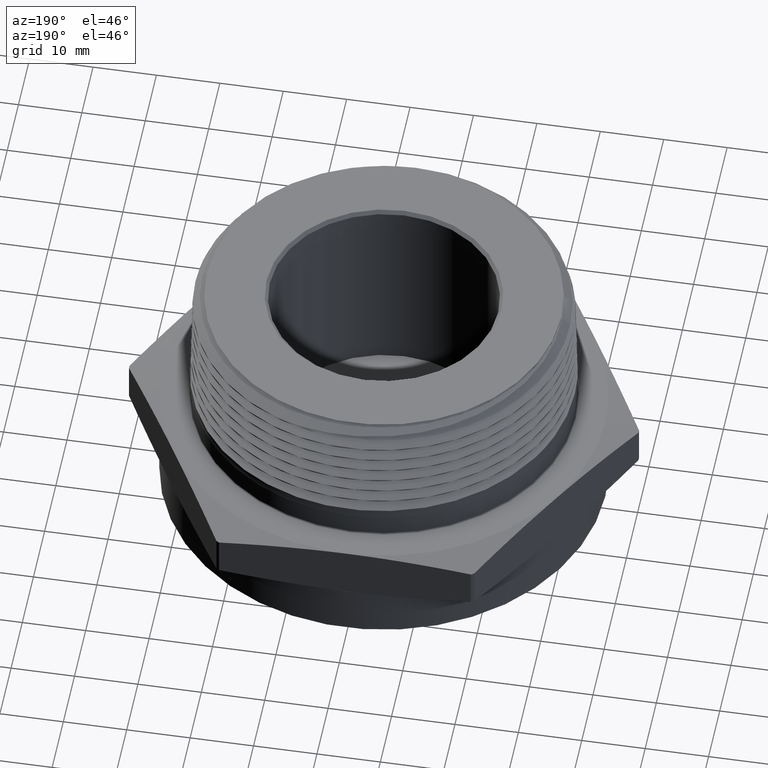
[diagram: clean part render]
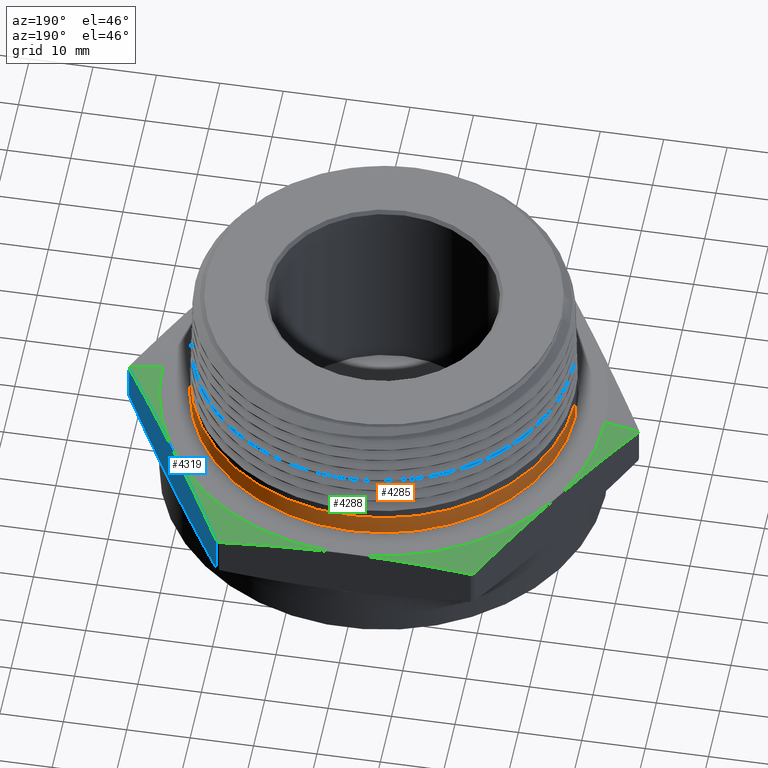
[diagram: same view with three faces highlighted in distinct colors, each labeled with its STEP entity id]
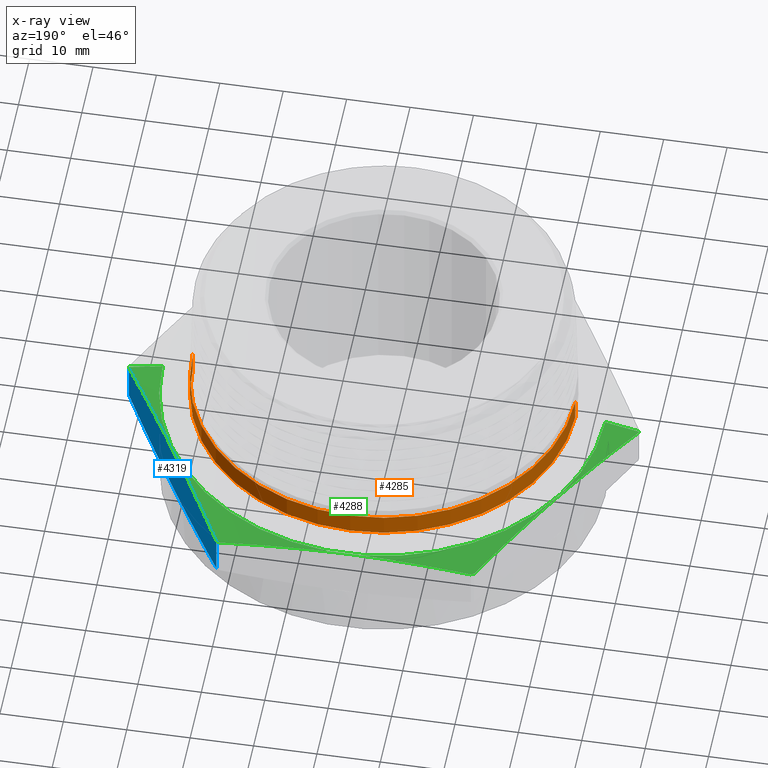
[diagram: x-ray of the same camera — body ghosted, the three highlighted faces saturated]
A machine part, auxiliary view with three faces highlighted in distinct colors.
The next image is the same camera in x-ray (body ghosted, the three faces saturated) — at least one of them is partly hidden behind the body in this view.
Their STEP definitions:

[orange] entity #4285 — the highlighted cylindrical surface (partial cylindrical patch) has radius 30.1625 mm, axis along (-0, -0, -1).
#592 = CARTESIAN_POINT ( 'NONE',  ( 1.187500000000000000, 1.454268073987482100E-016, 0.4712952533779566900 ) ) ;
#593 = CARTESIAN_POINT ( 'NONE',  ( -1.187500000000000000, 0.0000000000000000000, 0.4712952533779566900 ) ) ;
#655 = CARTESIAN_POINT ( 'NONE',  ( -1.187500000000000000, 0.0000000000000000000, 0.3400000000000000800 ) ) ;
#658 = CARTESIAN_POINT ( 'NONE',  ( 1.187500000000000000, 1.454268073987482100E-016, 0.3400000000000000800 ) ) ;
#1606 = AXIS2_PLACEMENT_3D ( 'NONE', #4873, #4874, #4875 ) ;
#1608 = AXIS2_PLACEMENT_3D ( 'NONE', #4886, #4887, #4888 ) ;
#1616 = AXIS2_PLACEMENT_3D ( 'NONE', #4907, #4908, #4906 ) ;
#1939 = EDGE_LOOP ( 'NONE', ( #2112, #2113, #2114, #2115 ) ) ;
#1979 = VERTEX_POINT ( 'NONE', #592 ) ;
#1980 = VERTEX_POINT ( 'NONE', #593 ) ;
#2092 = VERTEX_POINT ( 'NONE', #655 ) ;
#2095 = VERTEX_POINT ( 'NONE', #658 ) ;
#2112 = ORIENTED_EDGE ( 'NONE', *, *, #4224, .F. ) ;
#2113 = ORIENTED_EDGE ( 'NONE', *, *, #4230, .T. ) ;
#2114 = ORIENTED_EDGE ( 'NONE', *, *, #4228, .T. ) ;
#2115 = ORIENTED_EDGE ( 'NONE', *, *, #4231, .F. ) ;
#3012 = CIRCLE ( 'NONE', #1606, 1.187500000000000000 ) ;
#3016 = CIRCLE ( 'NONE', #1608, 1.187500000000000000 ) ;
#3019 = LINE ( 'NONE', #4885, #3021 ) ;
#3020 = LINE ( 'NONE', #4892, #3023 ) ;
#3021 = VECTOR ( 'NONE', #4884, 39.37007874015748100 ) ;
#3023 = VECTOR ( 'NONE', #4894, 39.37007874015748100 ) ;
#3032 = FACE_OUTER_BOUND ( 'NONE', #1939, .T. ) ;
#3035 = CYLINDRICAL_SURFACE ( 'NONE', #1616, 1.187500000000000000 ) ;
#4224 = EDGE_CURVE ( 'NONE', #1979, #1980, #3012, .T. ) ;
#4228 = EDGE_CURVE ( 'NONE', #2095, #2092, #3016, .T. ) ;
#4230 = EDGE_CURVE ( 'NONE', #1979, #2095, #3019, .T. ) ;
#4231 = EDGE_CURVE ( 'NONE', #1980, #2092, #3020, .T. ) ;
#4285 = ADVANCED_FACE ( 'NONE', ( #3032 ), #3035, .T. ) ;
#4873 = CARTESIAN_POINT ( 'NONE',  ( 0.0000000000000000000, 0.0000000000000000000, 0.4712952533779566900 ) ) ;
#4874 = DIRECTION ( 'NONE',  ( 0.0000000000000000000, 0.0000000000000000000, 1.000000000000000000 ) ) ;
#4875 = DIRECTION ( 'NONE',  ( -1.000000000000000000, 0.0000000000000000000, 0.0000000000000000000 ) ) ;
#4884 = DIRECTION ( 'NONE',  ( -0.0000000000000000000, -0.0000000000000000000, -1.000000000000000000 ) ) ;
#4885 = CARTESIAN_POINT ( 'NONE',  ( 1.187500000000000000, 1.454268073987482100E-016, 1.200000000000000000 ) ) ;
#4886 = CARTESIAN_POINT ( 'NONE',  ( 0.0000000000000000000, 0.0000000000000000000, 0.3400000000000000800 ) ) ;
#4887 = DIRECTION ( 'NONE',  ( -0.0000000000000000000, 0.0000000000000000000, 1.000000000000000000 ) ) ;
#4888 = DIRECTION ( 'NONE',  ( 1.000000000000000000, 0.0000000000000000000, 0.0000000000000000000 ) ) ;
#4892 = CARTESIAN_POINT ( 'NONE',  ( -1.187500000000000000, 0.0000000000000000000, 1.200000000000000000 ) ) ;
#4894 = DIRECTION ( 'NONE',  ( -0.0000000000000000000, -0.0000000000000000000, -1.000000000000000000 ) ) ;
#4906 = DIRECTION ( 'NONE',  ( -1.000000000000000000, 0.0000000000000000000, 0.0000000000000000000 ) ) ;
#4907 = CARTESIAN_POINT ( 'NONE',  ( 0.0000000000000000000, 0.0000000000000000000, 1.200000000000000000 ) ) ;
#4908 = DIRECTION ( 'NONE',  ( -0.0000000000000000000, -0.0000000000000000000, -1.000000000000000000 ) ) ;

[blue] entity #4319 — the highlighted planar face has unit normal (-0.866, -0.5, 0).
#13 = FACE_OUTER_BOUND ( 'NONE', #4256, .T. ) ;
#27 = B_SPLINE_CURVE_WITH_KNOTS ( 'NONE', 3,
 ( #458, #453, #454, #459, #460, #461, #462, #463, #464 ),
 .UNSPECIFIED., .F., .F.,
 ( 4, 2, 1, 2, 4 ),
 ( 1.903613379328393000E-006, 0.009930605507436409200, 0.01985930740149348700, 0.02978800929555056700, 0.03971671118960765100 ),
 .UNSPECIFIED. ) ;
#48 = B_SPLINE_CURVE_WITH_KNOTS ( 'NONE', 3,
 ( #1748, #1743, #1745, #1750 ),
 .UNSPECIFIED., .F., .F.,
 ( 4, 4 ),
 ( 0.01619990781229774600, 0.02351870699068968700 ),
 .UNSPECIFIED. ) ;
#453 = CARTESIAN_POINT ( 'NONE',  ( 0.8650401174064541500, 1.251706566066673500, 0.2996671014703055600 ) ) ;
#454 = CARTESIAN_POINT ( 'NONE',  ( 0.9301890799658837400, 1.138865252853339200, 0.3107620878294867800 ) ) ;
#458 = CARTESIAN_POINT ( 'NONE',  ( 0.7998911548470242200, 1.364547879280008300, 0.2859780607105314500 ) ) ;
#459 = CARTESIAN_POINT ( 'NONE',  ( 1.060487005084743000, 0.9131826264266694700, 0.3259089137437639100 ) ) ;
#460 = CARTESIAN_POINT ( 'NONE',  ( 1.190784930203602200, 0.6875000000000005600, 0.3339237188848420100 ) ) ;
#461 = CARTESIAN_POINT ( 'NONE',  ( 1.321082855322462100, 0.4618173735733309100, 0.3259089137437639100 ) ) ;
#462 = CARTESIAN_POINT ( 'NONE',  ( 1.451380780441321500, 0.2361347471466614900, 0.3107620878294867200 ) ) ;
#463 = CARTESIAN_POINT ( 'NONE',  ( 1.516529743000751600, 0.1232934339333269000, 0.2996671014703055100 ) ) ;
#464 = CARTESIAN_POINT ( 'NONE',  ( 1.581678705560180900, 0.01045212071999235600, 0.2859780607105313300 ) ) ;
#529 = CARTESIAN_POINT ( 'NONE',  ( 1.581678705560180600, 0.01045212071999235300, 0.04402193928946827200 ) ) ;
#530 = CARTESIAN_POINT ( 'NONE',  ( 0.7998911548470242200, 1.364547879280008300, 0.04402193928946797300 ) ) ;
#536 = CARTESIAN_POINT ( 'NONE',  ( 1.262820355187775200, 0.5627309839825966900, 0.001683635675387478700 ) ) ;
#574 = CARTESIAN_POINT ( 'NONE',  ( 0.7998911548470242200, 1.364547879280008300, 0.2859780607105314500 ) ) ;
#580 = CARTESIAN_POINT ( 'NONE',  ( 1.581678705560180900, 0.01045212071999235600, 0.2859780607105313300 ) ) ;
#632 = CARTESIAN_POINT ( 'NONE',  ( 1.118749505219429800, 0.8122690160174037600, 0.001683635675387478500 ) ) ;
#1142 = EDGE_CURVE ( 'NONE', #1967, #1887, #3338, .T. ) ;
#1146 = EDGE_CURVE ( 'NONE', #1898, #1960, #3342, .T. ) ;
#1157 = EDGE_CURVE ( 'NONE', #1886, #2019, #48, .T. ) ;
#1196 = EDGE_CURVE ( 'NONE', #1960, #1967, #27, .T. ) ;
#1648 = AXIS2_PLACEMENT_3D ( 'NONE', #3523, #3528, #3529 ) ;
#1679 = CARTESIAN_POINT ( 'NONE',  ( 1.581678705560180600, 0.01045212071999235300, -4.905664297508268900E-017 ) ) ;
#1681 = DIRECTION ( 'NONE',  ( -1.254986547952384500E-016, -0.0000000000000000000, -1.000000000000000000 ) ) ;
#1683 = CARTESIAN_POINT ( 'NONE',  ( 0.7998911548470242200, 1.364547879280008300, 4.905664297508268900E-017 ) ) ;
#1691 = DIRECTION ( 'NONE',  ( 1.254986547952384500E-016, 0.0000000000000000000, 1.000000000000000000 ) ) ;
#1743 = CARTESIAN_POINT ( 'NONE',  ( 1.214796738531660300, 0.6459103279941989000, -0.0004438263417191749000 ) ) ;
#1745 = CARTESIAN_POINT ( 'NONE',  ( 1.166773121875545000, 0.7290896720058014400, -0.0004438263417191634700 ) ) ;
#1748 = CARTESIAN_POINT ( 'NONE',  ( 1.262820355187775200, 0.5627309839825966900, 0.001683635675387478700 ) ) ;
#1750 = CARTESIAN_POINT ( 'NONE',  ( 1.118749505219429800, 0.8122690160174037600, 0.001683635675387478500 ) ) ;
#1852 = ORIENTED_EDGE ( 'NONE', *, *, #4213, .T. ) ;
#1865 = B_SPLINE_CURVE_WITH_KNOTS ( 'NONE', 3,
 ( #4655, #4656, #4660, #4661, #4662, #4663 ),
 .UNSPECIFIED., .F., .F.,
 ( 4, 2, 4 ),
 ( 0.02351870699068968700, 0.03161770909014878500, 0.03971671118960788000 ),
 .UNSPECIFIED. ) ;
#1866 = B_SPLINE_CURVE_WITH_KNOTS ( 'NONE', 3,
 ( #4639, #4647, #4651, #4652, #4653, #4654 ),
 .UNSPECIFIED., .F., .F.,
 ( 4, 2, 4 ),
 ( 1.903613379562672400E-006, 0.008100905712838654700, 0.01619990781229774600 ),
 .UNSPECIFIED. ) ;
#1886 = VERTEX_POINT ( 'NONE', #536 ) ;
#1887 = VERTEX_POINT ( 'NONE', #529 ) ;
#1898 = VERTEX_POINT ( 'NONE', #530 ) ;
#1960 = VERTEX_POINT ( 'NONE', #574 ) ;
#1967 = VERTEX_POINT ( 'NONE', #580 ) ;
#2019 = VERTEX_POINT ( 'NONE', #632 ) ;
#3338 = LINE ( 'NONE', #1679, #3341 ) ;
#3341 = VECTOR ( 'NONE', #1681, 39.37007874015748100 ) ;
#3342 = LINE ( 'NONE', #1683, #3348 ) ;
#3348 = VECTOR ( 'NONE', #1691, 39.37007874015748100 ) ;
#3522 = PLANE ( 'NONE',  #1648 ) ;
#3523 = CARTESIAN_POINT ( 'NONE',  ( 1.587713240271470600, 4.414597284588198800E-016, 0.3300000000000000200 ) ) ;
#3528 = DIRECTION ( 'NONE',  ( -0.8660254037844384900, -0.5000000000000003300, 0.0000000000000000000 ) ) ;
#3529 = DIRECTION ( 'NONE',  ( 0.5000000000000003300, -0.8660254037844384900, 0.0000000000000000000 ) ) ;
#4213 = EDGE_CURVE ( 'NONE', #1887, #1886, #1866, .T. ) ;
#4215 = EDGE_CURVE ( 'NONE', #2019, #1898, #1865, .T. ) ;
#4256 = EDGE_LOOP ( 'NONE', ( #1852, #8913, #8915, #8922, #8918, #8923 ) ) ;
#4319 = ADVANCED_FACE ( 'NONE', ( #13 ), #3522, .F. ) ;
#4639 = CARTESIAN_POINT ( 'NONE',  ( 1.581678705560180600, 0.01045212071999235300, 0.04402193928946827200 ) ) ;
#4647 = CARTESIAN_POINT ( 'NONE',  ( 1.528535647164779700, 0.1024985979304266200, 0.03285556819322690800 ) ) ;
#4651 = CARTESIAN_POINT ( 'NONE',  ( 1.475392588769379100, 0.1945450751408605300, 0.02341190238383943400 ) ) ;
#4652 = CARTESIAN_POINT ( 'NONE',  ( 1.369106471978577000, 0.3786380295617286000, 0.008994833965035854000 ) ) ;
#4653 = CARTESIAN_POINT ( 'NONE',  ( 1.315963413583176100, 0.4706845067721627300, 0.004037890645784417800 ) ) ;
#4654 = CARTESIAN_POINT ( 'NONE',  ( 1.262820355187775200, 0.5627309839825966900, 0.001683635675387478700 ) ) ;
#4655 = CARTESIAN_POINT ( 'NONE',  ( 1.118749505219429800, 0.8122690160174037600, 0.001683635675387478500 ) ) ;
#4656 = CARTESIAN_POINT ( 'NONE',  ( 1.065606446824028700, 0.9043154932278377700, 0.004037890645784441300 ) ) ;
#4660 = CARTESIAN_POINT ( 'NONE',  ( 1.012463388428628000, 0.9963619704382721300, 0.008994833965035921700 ) ) ;
#4661 = CARTESIAN_POINT ( 'NONE',  ( 0.9061772716378263500, 1.180454924859140300, 0.02341190238383951800 ) ) ;
#4662 = CARTESIAN_POINT ( 'NONE',  ( 0.8530342132424252300, 1.272501402069574400, 0.03285556819322707500 ) ) ;
#4663 = CARTESIAN_POINT ( 'NONE',  ( 0.7998911548470242200, 1.364547879280008300, 0.04402193928946797300 ) ) ;
#8913 = ORIENTED_EDGE ( 'NONE', *, *, #1157, .T. ) ;
#8915 = ORIENTED_EDGE ( 'NONE', *, *, #4215, .T. ) ;
#8918 = ORIENTED_EDGE ( 'NONE', *, *, #1196, .T. ) ;
#8922 = ORIENTED_EDGE ( 'NONE', *, *, #1146, .T. ) ;
#8923 = ORIENTED_EDGE ( 'NONE', *, *, #1142, .T. ) ;

[green] entity #4288 — the highlighted conical surface has half-angle 78 deg.
#27 = B_SPLINE_CURVE_WITH_KNOTS ( 'NONE', 3,
 ( #458, #453, #454, #459, #460, #461, #462, #463, #464 ),
 .UNSPECIFIED., .F., .F.,
 ( 4, 2, 1, 2, 4 ),
 ( 1.903613379328393000E-006, 0.009930605507436409200, 0.01985930740149348700, 0.02978800929555056700, 0.03971671118960765100 ),
 .UNSPECIFIED. ) ;
#29 = B_SPLINE_CURVE_WITH_KNOTS ( 'NONE', 3,
 ( #446, #441, #440, #447, #448, #449, #450, #451, #452 ),
 .UNSPECIFIED., .F., .F.,
 ( 4, 2, 1, 2, 4 ),
 ( 1.903613379444172700E-006, 0.009930605507436525400, 0.01985930740149360900, 0.02978800929555068500, 0.03971671118960776200 ),
 .UNSPECIFIED. ) ;
#113 = B_SPLINE_CURVE_WITH_KNOTS ( 'NONE', 3,
 ( #477, #465, #472, #478, #479, #480, #481, #482, #483, #484 ),
 .UNSPECIFIED., .F., .F.,
 ( 4, 2, 2, 2, 4 ),
 ( 0.03377979962099605900, 0.04374817589289529300, 0.05371655216479452600, 0.06368492843669376600, 0.07365330470859299300 ),
 .UNSPECIFIED. ) ;
#439 = DIRECTION ( 'NONE',  ( -0.9781476007338071300, 0.0000000000000000000, -0.2079116908177526300 ) ) ;
#440 = CARTESIAN_POINT ( 'NONE',  ( -1.451380780441321500, 0.2361347471466611100, 0.3107620878294870000 ) ) ;
#441 = CARTESIAN_POINT ( 'NONE',  ( -1.516529743000751400, 0.1232934339333262600, 0.2996671014703060600 ) ) ;
#442 = CARTESIAN_POINT ( 'NONE',  ( -1.374606299212598500, 0.0000000000000000000, 0.3300000000000000200 ) ) ;
#446 = CARTESIAN_POINT ( 'NONE',  ( -1.581678705560180900, 0.01045212071999167100, 0.2859780607105317800 ) ) ;
#447 = CARTESIAN_POINT ( 'NONE',  ( -1.321082855322461600, 0.4618173735733303600, 0.3259089137437640700 ) ) ;
#448 = CARTESIAN_POINT ( 'NONE',  ( -1.190784930203602900, 0.6874999999999996700, 0.3339237188848421800 ) ) ;
#449 = CARTESIAN_POINT ( 'NONE',  ( -1.060487005084743500, 0.9131826264266689200, 0.3259089137437640700 ) ) ;
#450 = CARTESIAN_POINT ( 'NONE',  ( -0.9301890799658844000, 1.138865252853338700, 0.3107620878294868900 ) ) ;
#451 = CARTESIAN_POINT ( 'NONE',  ( -0.8650401174064547000, 1.251706566066673300, 0.2996671014703057900 ) ) ;
#452 = CARTESIAN_POINT ( 'NONE',  ( -0.7998911548470250000, 1.364547879280008100, 0.2859780607105316700 ) ) ;
#453 = CARTESIAN_POINT ( 'NONE',  ( 0.8650401174064541500, 1.251706566066673500, 0.2996671014703055600 ) ) ;
#454 = CARTESIAN_POINT ( 'NONE',  ( 0.9301890799658837400, 1.138865252853339200, 0.3107620878294867800 ) ) ;
#458 = CARTESIAN_POINT ( 'NONE',  ( 0.7998911548470242200, 1.364547879280008300, 0.2859780607105314500 ) ) ;
#459 = CARTESIAN_POINT ( 'NONE',  ( 1.060487005084743000, 0.9131826264266694700, 0.3259089137437639100 ) ) ;
#460 = CARTESIAN_POINT ( 'NONE',  ( 1.190784930203602200, 0.6875000000000005600, 0.3339237188848420100 ) ) ;
#461 = CARTESIAN_POINT ( 'NONE',  ( 1.321082855322462100, 0.4618173735733309100, 0.3259089137437639100 ) ) ;
#462 = CARTESIAN_POINT ( 'NONE',  ( 1.451380780441321500, 0.2361347471466614900, 0.3107620878294867200 ) ) ;
#463 = CARTESIAN_POINT ( 'NONE',  ( 1.516529743000751600, 0.1232934339333269000, 0.2996671014703055100 ) ) ;
#464 = CARTESIAN_POINT ( 'NONE',  ( 1.581678705560180900, 0.01045212071999235600, 0.2859780607105313300 ) ) ;
#465 = CARTESIAN_POINT ( 'NONE',  ( -0.6515948728204920000, 1.375000000000000200, 0.2996560442445830300 ) ) ;
#466 = CARTESIAN_POINT ( 'NONE',  ( 3.588986192012274200E-017, 0.0000000000000000000, 0.2859780607105315600 ) ) ;
#467 = DIRECTION ( 'NONE',  ( -1.254986547952384500E-016, -0.0000000000000000000, -1.000000000000000000 ) ) ;
#468 = DIRECTION ( 'NONE',  ( -1.000000000000000000, 0.0000000000000000000, 1.295358692765665900E-016 ) ) ;
#469 = CARTESIAN_POINT ( 'NONE',  ( 3.588986192012274200E-017, 0.0000000000000000000, 0.2859780607105315600 ) ) ;
#470 = DIRECTION ( 'NONE',  ( -1.254986547952384500E-016, -0.0000000000000000000, -1.000000000000000000 ) ) ;
#471 = DIRECTION ( 'NONE',  ( -1.000000000000000000, 0.0000000000000000000, 1.295358692765665900E-016 ) ) ;
#472 = CARTESIAN_POINT ( 'NONE',  ( -0.5209048985766021600, 1.375000000000000200, 0.3107874248186294200 ) ) ;
#477 = CARTESIAN_POINT ( 'NONE',  ( -0.7817875507131555300, 1.375000000000000000, 0.2859780607105316700 ) ) ;
#478 = CARTESIAN_POINT ( 'NONE',  ( -0.2599154730155627300, 1.374999999999999800, 0.3259397607220253000 ) ) ;
#479 = CARTESIAN_POINT ( 'NONE',  ( -0.1295010883738221000, 1.375000000000000000, 0.3299328525526096200 ) ) ;
#480 = CARTESIAN_POINT ( 'NONE',  ( 0.1311478967473182500, 1.375000000000000200, 0.3298996752671549100 ) ) ;
#481 = CARTESIAN_POINT ( 'NONE',  ( 0.2613825259136066700, 1.375000000000000000, 0.3258746857438836200 ) ) ;
#482 = CARTESIAN_POINT ( 'NONE',  ( 0.5216925374187758600, 1.375000000000000000, 0.3107214236720031200 ) ) ;
#483 = CARTESIAN_POINT ( 'NONE',  ( 0.6517689198099376700, 1.375000000000000000, 0.2996377589470198800 ) ) ;
#484 = CARTESIAN_POINT ( 'NONE',  ( 0.7817875507131555300, 1.375000000000000000, 0.2859780607105314500 ) ) ;
#490 = CARTESIAN_POINT ( 'NONE',  ( 3.588986192012274200E-017, 0.0000000000000000000, 0.2859780607105315600 ) ) ;
#491 = DIRECTION ( 'NONE',  ( -1.254986547952384500E-016, -0.0000000000000000000, -1.000000000000000000 ) ) ;
#492 = DIRECTION ( 'NONE',  ( -1.000000000000000000, 0.0000000000000000000, 1.295358692765665900E-016 ) ) ;
#571 = CARTESIAN_POINT ( 'NONE',  ( -1.374606299212598700, 0.0000000000000000000, 0.3300000000000000200 ) ) ;
#573 = CARTESIAN_POINT ( 'NONE',  ( 1.374606299212598200, 1.683407204418497300E-016, 0.3299999999999996300 ) ) ;
#574 = CARTESIAN_POINT ( 'NONE',  ( 0.7998911548470242200, 1.364547879280008300, 0.2859780607105314500 ) ) ;
#579 = CARTESIAN_POINT ( 'NONE',  ( 0.7817875507131555300, 1.375000000000000000, 0.2859780607105314500 ) ) ;
#580 = CARTESIAN_POINT ( 'NONE',  ( 1.581678705560180900, 0.01045212071999235600, 0.2859780607105313300 ) ) ;
#581 = CARTESIAN_POINT ( 'NONE',  ( 1.581713240271470200, 1.937040056867444300E-016, 0.2859780607105313300 ) ) ;
#582 = CARTESIAN_POINT ( 'NONE',  ( -0.7998911548470250000, 1.364547879280008100, 0.2859780607105316700 ) ) ;
#583 = CARTESIAN_POINT ( 'NONE',  ( -1.581678705560180900, 0.01045212071999167100, 0.2859780607105317800 ) ) ;
#584 = CARTESIAN_POINT ( 'NONE',  ( -1.581713240271470400, 0.0000000000000000000, 0.2859780607105317800 ) ) ;
#649 = CARTESIAN_POINT ( 'NONE',  ( -0.7817875507131555300, 1.375000000000000000, 0.2859780607105316700 ) ) ;
#777 = DIRECTION ( 'NONE',  ( 0.9781476007338069100, 1.197885328332319900E-016, -0.2079116908177528500 ) ) ;
#783 = CARTESIAN_POINT ( 'NONE',  ( 1.374606299212598500, 1.683407204418497500E-016, 0.3299999999999996300 ) ) ;
#784 = CARTESIAN_POINT ( 'NONE',  ( 4.141455608242866600E-017, 0.0000000000000000000, 0.3299999999999998500 ) ) ;
#785 = DIRECTION ( 'NONE',  ( -1.254986547952384500E-016, -0.0000000000000000000, -1.000000000000000000 ) ) ;
#786 = DIRECTION ( 'NONE',  ( -1.000000000000000000, 0.0000000000000000000, 1.490525684642824300E-016 ) ) ;
#789 = CARTESIAN_POINT ( 'NONE',  ( 3.588986192012274200E-017, 0.0000000000000000000, 0.2859780607105315600 ) ) ;
#790 = DIRECTION ( 'NONE',  ( -1.254986547952384500E-016, -0.0000000000000000000, -1.000000000000000000 ) ) ;
#791 = DIRECTION ( 'NONE',  ( -1.000000000000000000, 0.0000000000000000000, 1.295358692765665900E-016 ) ) ;
#1193 = EDGE_CURVE ( 'NONE', #1970, #1969, #29, .T. ) ;
#1195 = EDGE_CURVE ( 'NONE', #1956, #1971, #3385, .T. ) ;
#1196 = EDGE_CURVE ( 'NONE', #1960, #1967, #27, .T. ) ;
#1197 = EDGE_CURVE ( 'NONE', #1971, #1970, #3384, .T. ) ;
#1198 = EDGE_CURVE ( 'NONE', #1966, #1960, #3387, .T. ) ;
#1200 = EDGE_CURVE ( 'NONE', #2086, #1966, #113, .T. ) ;
#1203 = EDGE_CURVE ( 'NONE', #1969, #2086, #3392, .T. ) ;
#1559 = AXIS2_PLACEMENT_3D ( 'NONE', #466, #467, #468 ) ;
#1560 = AXIS2_PLACEMENT_3D ( 'NONE', #469, #470, #471 ) ;
#1562 = AXIS2_PLACEMENT_3D ( 'NONE', #490, #491, #492 ) ;
#1594 = AXIS2_PLACEMENT_3D ( 'NONE', #784, #785, #786 ) ;
#1595 = AXIS2_PLACEMENT_3D ( 'NONE', #789, #790, #791 ) ;
#1617 = AXIS2_PLACEMENT_3D ( 'NONE', #4916, #4917, #4915 ) ;
#1920 = EDGE_LOOP ( 'NONE', ( #3479, #3480, #3481, #3482, #3483, #3484, #3485, #3486, #3487, #3488 ) ) ;
#1956 = VERTEX_POINT ( 'NONE', #571 ) ;
#1959 = VERTEX_POINT ( 'NONE', #573 ) ;
#1960 = VERTEX_POINT ( 'NONE', #574 ) ;
#1966 = VERTEX_POINT ( 'NONE', #579 ) ;
#1967 = VERTEX_POINT ( 'NONE', #580 ) ;
#1968 = VERTEX_POINT ( 'NONE', #581 ) ;
#1969 = VERTEX_POINT ( 'NONE', #582 ) ;
#1970 = VERTEX_POINT ( 'NONE', #583 ) ;
#1971 = VERTEX_POINT ( 'NONE', #584 ) ;
#2086 = VERTEX_POINT ( 'NONE', #649 ) ;
#2960 = LINE ( 'NONE', #783, #2972 ) ;
#2968 = CIRCLE ( 'NONE', #1594, 1.374606299212598500 ) ;
#2971 = CIRCLE ( 'NONE', #1595, 1.581713240271470400 ) ;
#2972 = VECTOR ( 'NONE', #777, 39.37007874015748100 ) ;
#3038 = FACE_OUTER_BOUND ( 'NONE', #1920, .T. ) ;
#3043 = CONICAL_SURFACE ( 'NONE', #1617, 1.374606299212598500, 1.361356816555583800 ) ;
#3384 = CIRCLE ( 'NONE', #1559, 1.581713240271470400 ) ;
#3385 = LINE ( 'NONE', #442, #3386 ) ;
#3386 = VECTOR ( 'NONE', #439, 39.37007874015748900 ) ;
#3387 = CIRCLE ( 'NONE', #1560, 1.581713240271470400 ) ;
#3392 = CIRCLE ( 'NONE', #1562, 1.581713240271470400 ) ;
#3479 = ORIENTED_EDGE ( 'NONE', *, *, #4089, .T. ) ;
#3480 = ORIENTED_EDGE ( 'NONE', *, *, #4092, .T. ) ;
#3481 = ORIENTED_EDGE ( 'NONE', *, *, #4094, .F. ) ;
#3482 = ORIENTED_EDGE ( 'NONE', *, *, #1196, .F. ) ;
#3483 = ORIENTED_EDGE ( 'NONE', *, *, #1198, .F. ) ;
#3484 = ORIENTED_EDGE ( 'NONE', *, *, #1200, .F. ) ;
#3485 = ORIENTED_EDGE ( 'NONE', *, *, #1203, .F. ) ;
#3486 = ORIENTED_EDGE ( 'NONE', *, *, #1193, .F. ) ;
#3487 = ORIENTED_EDGE ( 'NONE', *, *, #1197, .F. ) ;
#3488 = ORIENTED_EDGE ( 'NONE', *, *, #1195, .F. ) ;
#4089 = EDGE_CURVE ( 'NONE', #1956, #1959, #2968, .T. ) ;
#4092 = EDGE_CURVE ( 'NONE', #1959, #1968, #2960, .T. ) ;
#4094 = EDGE_CURVE ( 'NONE', #1967, #1968, #2971, .T. ) ;
#4288 = ADVANCED_FACE ( 'NONE', ( #3038 ), #3043, .T. ) ;
#4915 = DIRECTION ( 'NONE',  ( -1.000000000000000000, 0.0000000000000000000, 1.490525684642824300E-016 ) ) ;
#4916 = CARTESIAN_POINT ( 'NONE',  ( 4.141455608242866600E-017, 0.0000000000000000000, 0.3299999999999998500 ) ) ;
#4917 = DIRECTION ( 'NONE',  ( -1.254986547952384500E-016, -0.0000000000000000000, -1.000000000000000000 ) ) ;